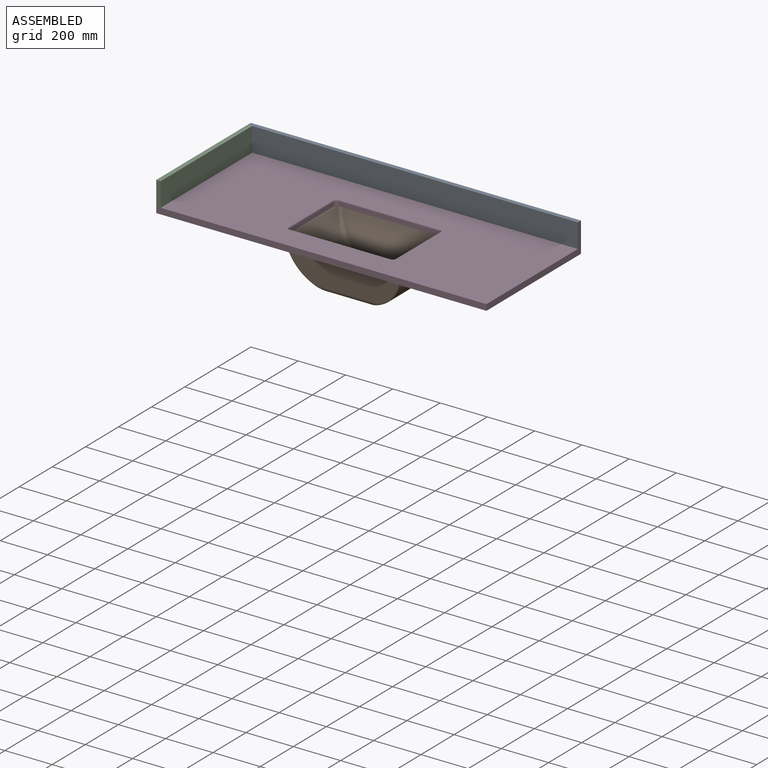
[diagram: assembled view]
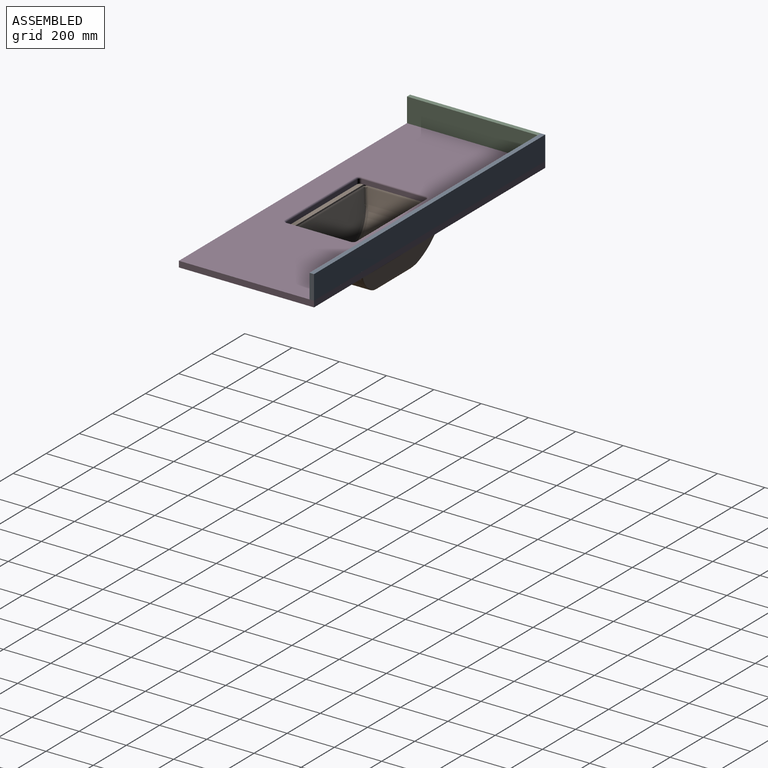
[diagram: assembled view, second angle]
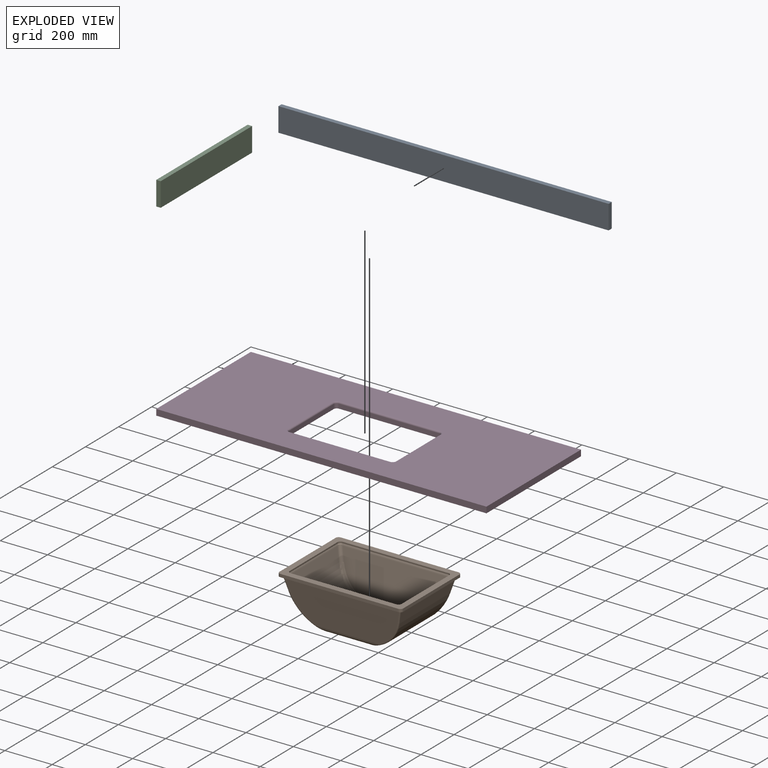
[diagram: exploded view]
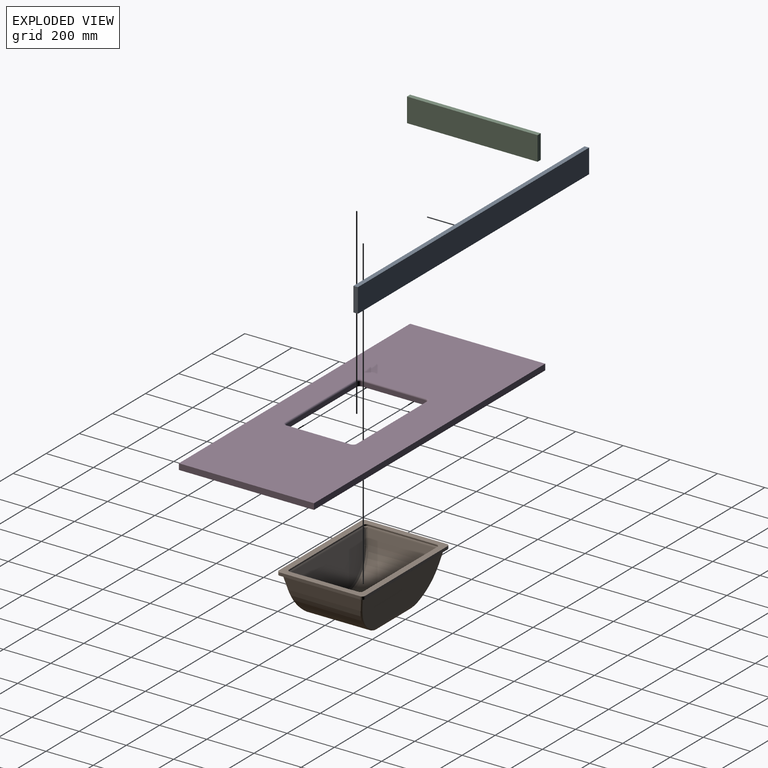
[diagram: exploded view, second angle]
ASSEMBLY  parts=4 mates=3
PART A: 6 faces, bbox 1397x19.1x101.6 mm
  f0: plane 101.6x19.05mm, normal (-1,0,0), area 1935.5mm2, adj f1,f3,f4,f5
  f1: plane 1397x19.05mm, normal (0,0,-1), area 26612.8mm2, adj f0,f2,f4,f5
  f2: plane 101.6x19.05mm, normal (1,0,0), area 1935.5mm2, adj f1,f3,f4,f5
  f3: plane 1397x19.05mm, normal (0,0,1), area 26612.8mm2, adj f0,f2,f4,f5
  f4: plane 1397x101.6mm, normal (0,-1,0), area 141935.2mm2, adj f0,f1,f2,f3
  f5: plane 1397x101.6mm, normal (0,1,0), area 141935.2mm2, adj f0,f1,f2,f3
PART B: 85 faces, bbox 529x370.2x224.2 mm
  f0: plane 523.88x365.13mm, normal (0,0,1), area 42580.6mm2, adj f2,f3,f10,f11,f12,f13,f14,f15
  f1: plane 216.25x123.48mm, normal (0,0,-1), area 23535.9mm2, adj f5,f9,f19,f21,f83
  f2: cylinder r=12.7mm len=12.7mm, axis (0,0,1), area 253.4mm2, adj f0,f10,f12,f16
  f3: cylinder r=12.7mm len=12.7mm, axis (0,0,1), area 253.4mm2, adj f0,f11,f12,f16
  f4: plane 327.85x54.92mm, normal (0.97,0,-0.25), area 17915.1mm2, adj f5,f6,f64,f65,f74,f75
  f5: cylinder r=177.8mm len=304.49mm, axis (0,-1,0), area 62446.6mm2, adj f1,f4,f62,f63,f72,f73
  f6: cylinder r=6.35mm len=350.01mm, axis (0,-1,0), area 2844.7mm2, adj f4,f16,f66,f76
  f7: plane 327.85x54.92mm, normal (-0.97,0,-0.25), area 17915.1mm2, adj f8,f9,f59,f60,f69,f70
  f8: cylinder r=6.35mm len=350.01mm, axis (0,-1,0), area 2844.7mm2, adj f7,f16,f61,f71
  f9: cylinder r=177.8mm len=304.49mm, axis (0,-1,0), area 62446.6mm2, adj f1,f7,f57,f58,f67,f68
  f10: plane 339.73x12.7mm, normal (1,0,0), area 4314.5mm2, adj f0,f2,f15,f16
  f11: plane 339.73x12.7mm, normal (-1,0,0), area 4314.5mm2, adj f0,f3,f14,f16
  f12: plane 498.48x12.7mm, normal (0,1,0), area 6330.6mm2, adj f0,f2,f3,f16
  f13: plane 498.48x12.7mm, normal (0,-1,0), area 6330.6mm2, adj f0,f14,f15,f16
  f14: cylinder r=12.7mm len=12.7mm, axis (0,0,1), area 253.4mm2, adj f0,f11,f13,f16
  f15: cylinder r=12.7mm len=12.7mm, axis (0,0,1), area 253.4mm2, adj f0,f10,f13,f16
  f16: plane 523.88x365.13mm, normal (0,0,-1), area 13214.5mm2, adj f2,f3,f6,f8,f10,f11,f12,f13
  f17: cylinder r=6.35mm len=508.35mm, axis (1,0,0), area 4279.5mm2, adj f16,f18,f60,f61,f65,f66
  f18: plane 485.97x168.53mm, normal (0,-0.98,-0.21), area 72103.4mm2, adj f17,f19,f58,f59,f63,f64
  f19: cylinder r=25.4mm len=269.09mm, axis (1,0,0), area 6787.3mm2, adj f1,f18,f57,f62
  f20: cylinder r=6.35mm len=508.35mm, axis (1,0,0), area 4279.5mm2, adj f16,f22,f70,f71,f75,f76
  f21: cylinder r=25.4mm len=269.09mm, axis (1,0,0), area 6787.3mm2, adj f1,f22,f67,f72
  f22: plane 485.97x168.53mm, normal (0,0.98,-0.21), area 72103.4mm2, adj f20,f21,f68,f69,f73,f74
  f23: plane 447.68x6.35mm, normal (0,1,0), area 2842.7mm2, adj f0,f27,f77,f80
  f24: plane 288.93x6.35mm, normal (-1,0,0), area 1834.7mm2, adj f0,f27,f77,f78
  f25: plane 447.68x6.35mm, normal (0,-1,0), area 2842.7mm2, adj f0,f27,f78,f79
  f26: plane 288.93x6.35mm, normal (1,0,0), area 1834.7mm2, adj f0,f27,f79,f80
  f27: plane 485.07x326.73mm, normal (0,0,-1), area 5734.4mm2, adj f23,f24,f25,f26,f31,f33,f35,f38
  f28: plane 216.25x123.48mm, normal (0,0,1), area 25911.1mm2, adj f30,f34,f37,f39,f84
  f29: plane 288.47x54.92mm, normal (-0.97,0,0.25), area 15681.5mm2, adj f30,f31,f50,f51,f54,f55
  f30: cylinder r=165.1mm len=265.07mm, axis (0,-1,0), area 52517.4mm2, adj f28,f29,f49,f53
  f31: cylinder r=19.05mm len=302.68mm, axis (0,-1,0), area 2706.5mm2, adj f27,f29,f52,f56
  f32: plane 288.47x54.92mm, normal (0.97,0,0.25), area 15681.5mm2, adj f33,f34,f42,f43,f46,f47
  f33: cylinder r=19.05mm len=302.68mm, axis (0,-1,0), area 2706.5mm2, adj f27,f32,f41,f45
  f34: cylinder r=165.1mm len=265.07mm, axis (0,-1,0), area 52517.4mm2, adj f28,f32,f44,f48
  f35: cylinder r=19.05mm len=461.02mm, axis (1,0,0), area 4483.5mm2, adj f27,f36,f45,f46,f51,f52
  f36: plane 446.19x168.53mm, normal (0,0.98,0.21), area 63950.3mm2, adj f35,f37,f47,f48,f49,f50
  f37: cylinder r=12.7mm len=123.48mm, axis (1,0,0), area 2134.9mm2, adj f28,f36,f48,f49
  f38: cylinder r=19.05mm len=461.02mm, axis (1,0,0), area 4483.5mm2, adj f27,f40,f41,f42,f55,f56
  f39: cylinder r=12.7mm len=123.48mm, axis (1,0,0), area 2134.9mm2, adj f28,f40,f44,f53
  f40: plane 446.19x168.53mm, normal (0,-0.98,0.21), area 63950.3mm2, adj f38,f39,f43,f44,f53,f54
  f41: bspline ~16.57x16.57mm, area 174.1mm2, adj f27,f33,f38,f42
  f42: bspline ~12.62x12.59mm, area 19mm2, adj f32,f38,f41,f43
  f43: cylinder r=12.7mm len=55.05mm, axis (0.24,-0.2,-0.95), area 1091.6mm2, adj f32,f40,f42,f44
  f44: bspline ~162.63x136.42mm, area 3841.8mm2, adj f34,f39,f40,f43
  f45: bspline ~16.57x16.57mm, area 174.1mm2, adj f27,f33,f35,f46
  f46: bspline ~12.62x12.59mm, area 19mm2, adj f32,f35,f45,f47
  f47: cylinder r=12.7mm len=55.05mm, axis (-0.24,-0.2,0.95), area 1091.6mm2, adj f32,f36,f46,f48
  f48: bspline ~166.23x136.42mm, area 3841.8mm2, adj f34,f36,f37,f47
  f49: bspline ~177.02x136.42mm, area 3841.8mm2, adj f30,f36,f37,f50
  f50: cylinder r=12.7mm len=55.05mm, axis (-0.24,0.2,-0.95), area 1091.6mm2, adj f29,f36,f49,f51
  f51: bspline ~12.62x12.59mm, area 19mm2, adj f29,f35,f50,f52
  f52: bspline ~16.57x16.57mm, area 174.1mm2, adj f27,f31,f35,f51
  f53: bspline ~162.63x136.42mm, area 3841.8mm2, adj f30,f39,f40,f54
  f54: cylinder r=12.7mm len=55.05mm, axis (0.24,0.2,0.95), area 1091.6mm2, adj f29,f40,f53,f55
  f55: bspline ~12.62x12.59mm, area 19mm2, adj f29,f38,f54,f56
  f56: bspline ~16.57x16.57mm, area 174.1mm2, adj f27,f31,f38,f55
  f57: bspline ~79.35x25.26mm, area 185.6mm2, adj f9,f19,f58
  f58: bspline ~117.6x99.51mm, area 1156.3mm2, adj f9,f18,f57,f59
  f59: cylinder r=5.08mm len=55.02mm, axis (0.24,0.2,-0.95), area 443mm2, adj f7,f18,f58,f60
  f60: bspline ~5.04x5.03mm, area 2.6mm2, adj f7,f17,f59,f61
  f61: bspline ~11.28x11.28mm, area 29.6mm2, adj f8,f17,f60
  f62: bspline ~76.05x24.98mm, area 185.8mm2, adj f5,f19,f63
  f63: bspline ~117.6x99.51mm, area 1156.3mm2, adj f5,f18,f62,f64
  f64: cylinder r=5.08mm len=55.02mm, axis (0.24,-0.2,0.95), area 443mm2, adj f4,f18,f63,f65
  f65: bspline ~5.04x5.03mm, area 2.6mm2, adj f4,f17,f64,f66
  f66: bspline ~11.28x11.28mm, area 29.6mm2, adj f6,f17,f65
  f67: bspline ~79.35x25.26mm, area 185.8mm2, adj f9,f21,f68
  f68: bspline ~117.6x99.51mm, area 1156.3mm2, adj f9,f22,f67,f69
  f69: cylinder r=5.08mm len=55.02mm, axis (-0.24,0.2,0.95), area 443mm2, adj f7,f22,f68,f70
  f70: bspline ~5.04x5.03mm, area 2.6mm2, adj f7,f20,f69,f71
  f71: bspline ~11.28x11.28mm, area 29.6mm2, adj f8,f20,f70
  f72: bspline ~76.05x24.98mm, area 185.6mm2, adj f5,f21,f73
  f73: bspline ~117.6x99.51mm, area 1156.3mm2, adj f5,f22,f72,f74
  f74: cylinder r=5.08mm len=55.02mm, axis (-0.24,-0.2,-0.95), area 443mm2, adj f4,f22,f73,f75
  f75: bspline ~5.04x5.03mm, area 2.6mm2, adj f4,f20,f74,f76
  f76: bspline ~11.28x11.28mm, area 29.6mm2, adj f6,f20,f75
  f77: cylinder r=12.7mm len=12.7mm, axis (0,0,1), area 126.7mm2, adj f0,f23,f24,f27
  f78: cylinder r=12.7mm len=12.7mm, axis (0,0,-1), area 126.7mm2, adj f0,f24,f25,f27
  f79: cylinder r=12.7mm len=12.7mm, axis (0,0,1), area 126.7mm2, adj f0,f25,f26,f27
  f80: cylinder r=12.7mm len=12.7mm, axis (0,0,-1), area 126.7mm2, adj f0,f23,f26,f27
  f81: cylinder r=25.4mm len=50.8mm, axis (0,0,1), area 1013.4mm2, adj f82,f83
  f82: plane 50.8x50.8mm, normal (0,0,-1), area 1235.1mm2, adj f81,f84
  f83: torus R=31.75mm, axis (0,0,1), area 1736.5mm2, adj f1,f81
  f84: cylinder r=15.88mm len=31.75mm, axis (0,0,1), area 2533.5mm2, adj f28,f82
PART C: 6 faces, bbox 552.5x19.1x101.6 mm
  f0: plane 101.6x19.05mm, normal (-1,0,0), area 1935.5mm2, adj f1,f3,f4,f5
  f1: plane 552.45x19.05mm, normal (0,0,-1), area 10524.2mm2, adj f0,f2,f4,f5
  f2: plane 101.6x19.05mm, normal (1,0,0), area 1935.5mm2, adj f1,f3,f4,f5
  f3: plane 552.45x19.05mm, normal (0,0,1), area 10524.2mm2, adj f0,f2,f4,f5
  f4: plane 552.45x101.6mm, normal (0,-1,0), area 56128.9mm2, adj f0,f1,f2,f3
  f5: plane 552.45x101.6mm, normal (0,1,0), area 56128.9mm2, adj f0,f1,f2,f3
PART D: 22 faces, bbox 1397x571.5x25.4 mm
  f0: plane 1397x571.5mm, normal (0,0,1), area 655935.2mm2, adj f2,f3,f4,f5,f14,f15,f16,f17
  f1: plane 1397x571.5mm, normal (0,0,-1), area 665399.2mm2, adj f2,f3,f4,f5,f6,f7,f8,f9
  f2: plane 571.5x25.4mm, normal (-1,0,0), area 14516.1mm2, adj f0,f1,f3,f5
  f3: plane 1397x25.4mm, normal (0,-1,0), area 35483.8mm2, adj f0,f1,f2,f4
  f4: plane 571.5x25.4mm, normal (1,0,0), area 14516.1mm2, adj f0,f1,f3,f5
  f5: plane 1397x25.4mm, normal (0,1,0), area 35483.8mm2, adj f0,f1,f2,f4
  f6: plane 269.88x19.05mm, normal (-1,0,0), area 5141.1mm2, adj f1,f7,f13,f17
  f7: cylinder r=12.7mm len=19.05mm, axis (0,0,1), area 380mm2, adj f1,f6,f8,f15
  f8: plane 425.45x19.05mm, normal (0,-1,0), area 8104.8mm2, adj f1,f7,f9,f14
  f9: cylinder r=12.7mm len=19.05mm, axis (0,0,1), area 380mm2, adj f1,f8,f10,f16
  f10: plane 269.88x19.05mm, normal (1,0,0), area 5141.1mm2, adj f1,f9,f11,f18
  f11: cylinder r=12.7mm len=19.05mm, axis (0,0,1), area 380mm2, adj f1,f10,f12,f20
  f12: plane 425.45x19.05mm, normal (0,1,0), area 8104.8mm2, adj f1,f11,f13,f21
  f13: cylinder r=12.7mm len=19.05mm, axis (0,0,1), area 380mm2, adj f1,f6,f12,f19
  f14: cylinder r=6.35mm len=425.45mm, axis (1,0,0), area 4243.7mm2, adj f0,f8,f15,f16
  f15: torus R=19.05mm, axis (0,0,1), area 235.1mm2, adj f0,f7,f14,f17
  f16: torus R=19.05mm, axis (0,0,1), area 235.1mm2, adj f0,f9,f14,f18
  f17: cylinder r=6.35mm len=269.88mm, axis (0,-1,0), area 2691.9mm2, adj f0,f6,f15,f19
  f18: cylinder r=6.35mm len=269.88mm, axis (0,1,0), area 2691.9mm2, adj f0,f10,f16,f20
  f19: torus R=19.05mm, axis (0,0,1), area 235.1mm2, adj f0,f13,f17,f21
  f20: torus R=19.05mm, axis (0,0,1), area 235.1mm2, adj f0,f11,f18,f21
  f21: cylinder r=6.35mm len=425.45mm, axis (-1,0,0), area 4243.7mm2, adj f0,f12,f19,f20
PLACE A t=(0,571.5,25.4)mm
PLACE B t=(698.5,290.92,0)mm
PLACE C rot(axis=(0,0,-1),90deg) t=(19.05,552.45,25.4)mm
PLACE D at identity
MATE fastened B.f81 <-> D.f1  axis (0,0,1) through (698.5,290.92,0)mm
MATE fastened D.f0 <-> A.f1  axis (0,0,1) through (0,571.5,25.4)mm
MATE fastened C.f1 <-> A.f1  axis (0,0,1) through (0,552.45,25.4)mm
